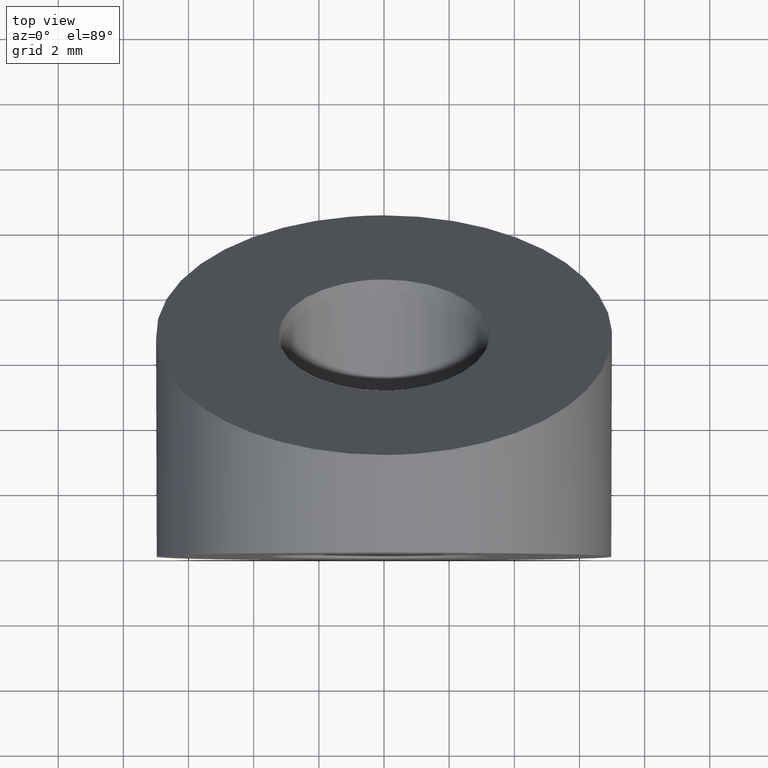
[diagram: clean part render]
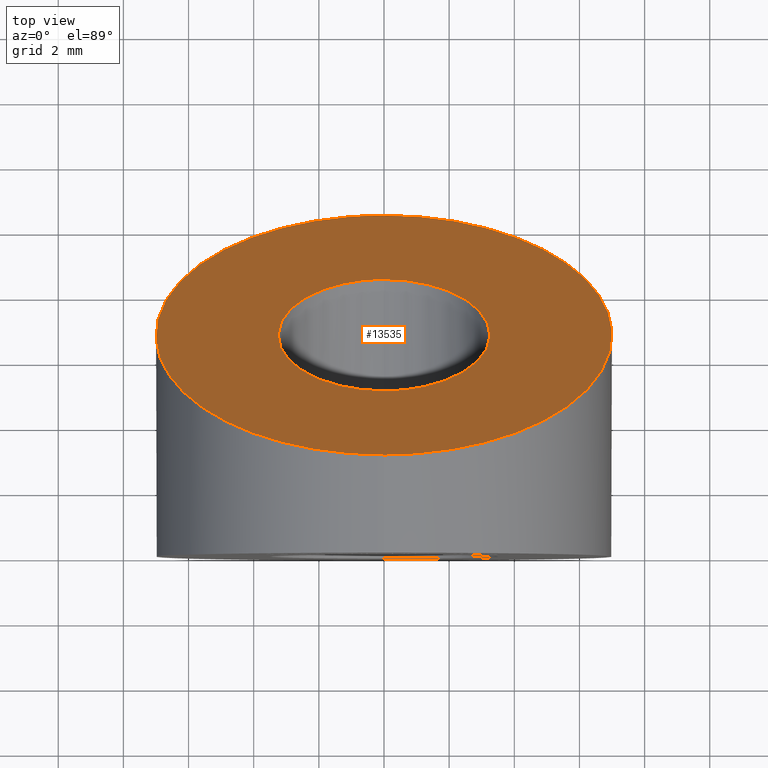
[diagram: same view with one face highlighted and labeled with its STEP entity id]
A machine part, top view. The second image highlights one B-rep face of the part: STEP entity #13535.
In plain terms, the highlighted planar face has unit normal (0, -0.8789, -0.4771).
Its self-contained STEP definition (entity closure, byte-faithful):
#456 = DIRECTION ( 'NONE',  ( 0.0000000000000000000, 0.4770918629042344400, -0.8788534316656941800 ) ) ;
#508 = ORIENTED_EDGE ( 'NONE', *, *, #4100, .T. ) ;
#536 = EDGE_CURVE ( 'NONE', #3906, #5110, #3674, .T. ) ;
#640 = DIRECTION ( 'NONE',  ( 0.0000000000000000000, -0.8788534316656943000, -0.4770918629042345000 ) ) ;
#1510 = CARTESIAN_POINT ( 'NONE',  ( -14.00000000000000200, 2.999999999999996400, 7.000000000000000900 ) ) ;
#1945 = CARTESIAN_POINT ( 'NONE',  ( 14.00000000000000200, 2.999999999999996400, 7.000000000000000900 ) ) ;
#2056 =( BOUNDED_CURVE ( )  B_SPLINE_CURVE ( 3, ( #9690, #8508, #2408, #6561 ),
 .UNSPECIFIED., .F., .F. ) 
 B_SPLINE_CURVE_WITH_KNOTS ( ( 4, 4 ),
 ( 0.0000000000000000000, 3.141592653589793100 ),
 .UNSPECIFIED. ) 
 CURVE ( )  GEOMETRIC_REPRESENTATION_ITEM ( )  RATIONAL_B_SPLINE_CURVE ( ( 1.000000000000000000, 0.3333333333333333700, 0.3333333333333333700, 1.000000000000000000 ) ) 
 REPRESENTATION_ITEM ( '' )  );
#2408 = CARTESIAN_POINT ( 'NONE',  ( -6.500000000000001800, 8.564285714285714900, -3.250000000000000900 ) ) ;
#2561 = ORIENTED_EDGE ( 'NONE', *, *, #11650, .T. ) ;
#2871 = CARTESIAN_POINT ( 'NONE',  ( 3.980102097228898200E-016, 5.035714285714282900, 3.250000000000000400 ) ) ;
#3359 = EDGE_LOOP ( 'NONE', ( #508, #2561 ) ) ;
#3603 = CARTESIAN_POINT ( 'NONE',  ( -14.00000000000000200, 10.60000000000000300, -7.000000000000000000 ) ) ;
#3674 =( BOUNDED_CURVE ( )  B_SPLINE_CURVE ( 3, ( #4636, #1510, #3603, #11897 ),
 .UNSPECIFIED., .F., .F. ) 
 B_SPLINE_CURVE_WITH_KNOTS ( ( 4, 4 ),
 ( 0.0000000000000000000, 3.141592653589793100 ),
 .UNSPECIFIED. ) 
 CURVE ( )  GEOMETRIC_REPRESENTATION_ITEM ( )  RATIONAL_B_SPLINE_CURVE ( ( 1.000000000000000000, 0.3333333333333333700, 0.3333333333333333700, 1.000000000000000000 ) ) 
 REPRESENTATION_ITEM ( '' )  );
#3837 = VERTEX_POINT ( 'NONE', #2871 ) ;
#3855 = CARTESIAN_POINT ( 'NONE',  ( 6.500000000000001800, 5.035714285714282000, 3.250000000000000900 ) ) ;
#3906 = VERTEX_POINT ( 'NONE', #13491 ) ;
#4100 = EDGE_CURVE ( 'NONE', #6679, #3837, #12611, .T. ) ;
#4106 = ORIENTED_EDGE ( 'NONE', *, *, #536, .F. ) ;
#4202 = CARTESIAN_POINT ( 'NONE',  ( 0.0000000000000000000, 8.564285714285714900, -3.250000000000000400 ) ) ;
#4636 = CARTESIAN_POINT ( 'NONE',  ( 8.572527594031473200E-016, 2.999999999999995600, 7.000000000000000000 ) ) ;
#4783 = EDGE_CURVE ( 'NONE', #5110, #3906, #11608, .T. ) ;
#4786 = CARTESIAN_POINT ( 'NONE',  ( -7.000000000000000000, 2.999999999999995600, 7.000000000000000000 ) ) ;
#5110 = VERTEX_POINT ( 'NONE', #9233 ) ;
#6561 = CARTESIAN_POINT ( 'NONE',  ( 0.0000000000000000000, 8.564285714285714900, -3.250000000000000400 ) ) ;
#6679 = VERTEX_POINT ( 'NONE', #4202 ) ;
#6870 = CARTESIAN_POINT ( 'NONE',  ( 0.0000000000000000000, 8.564285714285714900, -3.250000000000000400 ) ) ;
#7002 = CARTESIAN_POINT ( 'NONE',  ( 8.572527594031473200E-016, 2.999999999999995600, 7.000000000000000000 ) ) ;
#7168 = FACE_OUTER_BOUND ( 'NONE', #13259, .T. ) ;
#7453 = AXIS2_PLACEMENT_3D ( 'NONE', #4786, #640, #456 ) ;
#8005 = CARTESIAN_POINT ( 'NONE',  ( 6.500000000000001800, 8.564285714285714900, -3.250000000000002200 ) ) ;
#8183 = CARTESIAN_POINT ( 'NONE',  ( 14.00000000000000200, 10.60000000000000700, -7.000000000000002700 ) ) ;
#8508 = CARTESIAN_POINT ( 'NONE',  ( -6.500000000000001800, 5.035714285714282000, 3.250000000000000900 ) ) ;
#8889 = PLANE ( 'NONE',  #7453 ) ;
#9233 = CARTESIAN_POINT ( 'NONE',  ( 0.0000000000000000000, 10.60000000000000500, -7.000000000000000000 ) ) ;
#9690 = CARTESIAN_POINT ( 'NONE',  ( 3.980102097228898200E-016, 5.035714285714282900, 3.250000000000000400 ) ) ;
#9781 = ORIENTED_EDGE ( 'NONE', *, *, #4783, .F. ) ;
#10106 = FACE_BOUND ( 'NONE', #3359, .T. ) ;
#11608 =( BOUNDED_CURVE ( )  B_SPLINE_CURVE ( 3, ( #13434, #8183, #1945, #7002 ),
 .UNSPECIFIED., .F., .F. ) 
 B_SPLINE_CURVE_WITH_KNOTS ( ( 4, 4 ),
 ( 3.141592653589793100, 6.283185307179586200 ),
 .UNSPECIFIED. ) 
 CURVE ( )  GEOMETRIC_REPRESENTATION_ITEM ( )  RATIONAL_B_SPLINE_CURVE ( ( 1.000000000000000000, 0.3333333333333333700, 0.3333333333333333700, 1.000000000000000000 ) ) 
 REPRESENTATION_ITEM ( '' )  );
#11650 = EDGE_CURVE ( 'NONE', #3837, #6679, #2056, .T. ) ;
#11897 = CARTESIAN_POINT ( 'NONE',  ( 0.0000000000000000000, 10.60000000000000500, -7.000000000000000000 ) ) ;
#12611 =( BOUNDED_CURVE ( )  B_SPLINE_CURVE ( 3, ( #6870, #8005, #3855, #13302 ),
 .UNSPECIFIED., .F., .F. ) 
 B_SPLINE_CURVE_WITH_KNOTS ( ( 4, 4 ),
 ( 3.141592653589793100, 6.283185307179586200 ),
 .UNSPECIFIED. ) 
 CURVE ( )  GEOMETRIC_REPRESENTATION_ITEM ( )  RATIONAL_B_SPLINE_CURVE ( ( 1.000000000000000000, 0.3333333333333333700, 0.3333333333333333700, 1.000000000000000000 ) ) 
 REPRESENTATION_ITEM ( '' )  );
#13259 = EDGE_LOOP ( 'NONE', ( #9781, #4106 ) ) ;
#13302 = CARTESIAN_POINT ( 'NONE',  ( 3.980102097228898200E-016, 5.035714285714282900, 3.250000000000000400 ) ) ;
#13434 = CARTESIAN_POINT ( 'NONE',  ( 0.0000000000000000000, 10.60000000000000500, -7.000000000000000000 ) ) ;
#13491 = CARTESIAN_POINT ( 'NONE',  ( 8.572527594031473200E-016, 2.999999999999995600, 7.000000000000000000 ) ) ;
#13535 = ADVANCED_FACE ( 'NONE', ( #10106, #7168 ), #8889, .F. ) ;